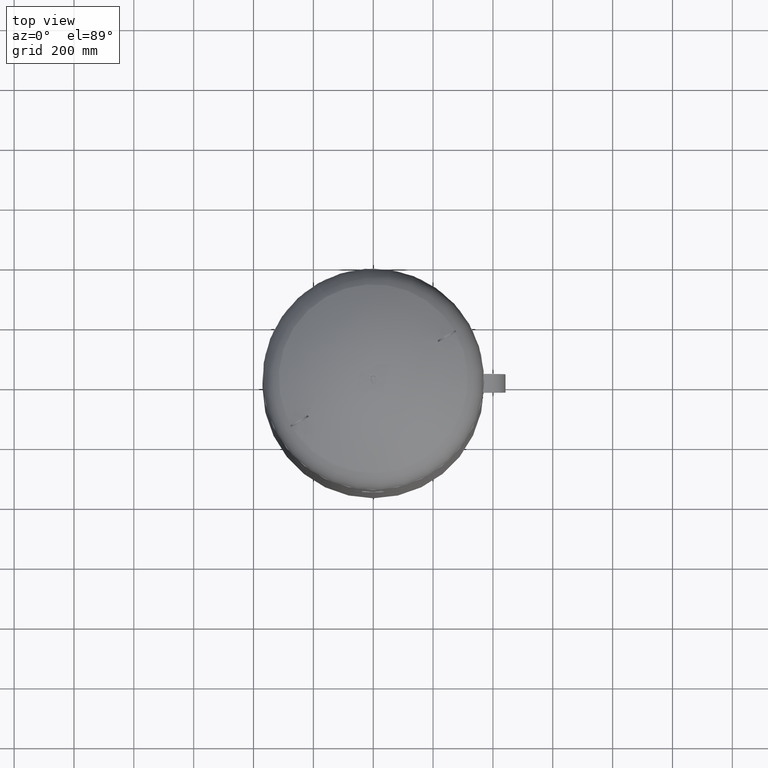
[diagram: clean part render]
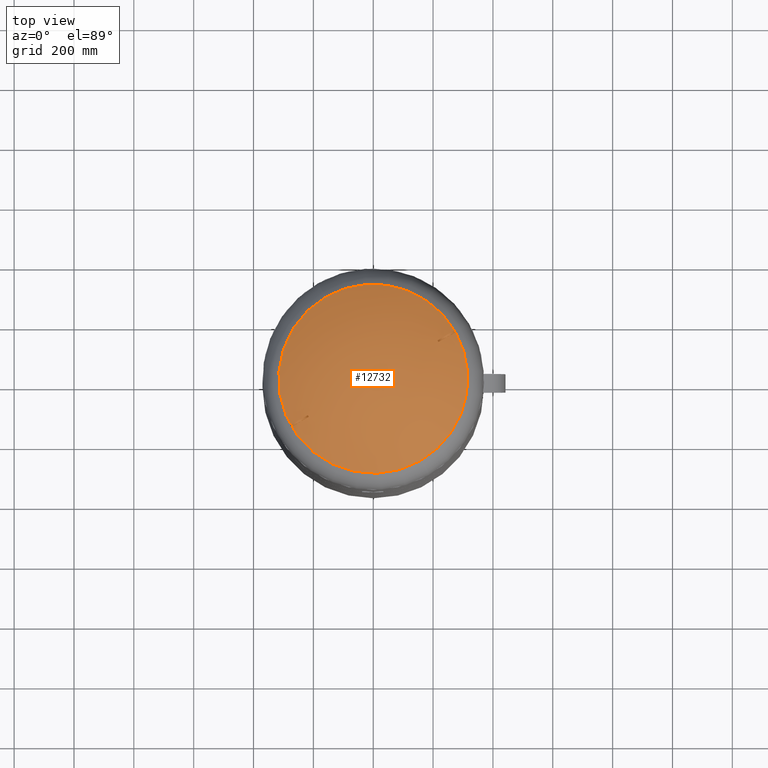
[diagram: same view with one face highlighted and labeled with its STEP entity id]
A machine part, top view. The second image highlights one B-rep face of the part: STEP entity #12732.
In plain terms, the highlighted spherical surface has radius 594 mm.
Its self-contained STEP definition (entity closure, byte-faithful):
#12101=CARTESIAN_POINT('',(157.965517241379270,-273.604301705966460,2063.014494274920300));
#12102=VERTEX_POINT('',#12101);
#12118=CARTESIAN_POINT('',(-157.965517241379250,273.604301705966410,2063.014494274920300));
#12119=VERTEX_POINT('',#12118);
#12127=CARTESIAN_POINT('',(273.604301705966460,157.965517241379250,2063.014494274920300));
#12128=VERTEX_POINT('',#12127);
#12129=CARTESIAN_POINT('',(-1.292814E-015,-2.004580E-014,2063.014494274920300));
#12130=DIRECTION('',(-1.060575E-016,-6.123234E-017,-1.0));
#12131=DIRECTION('',(0.866025403784439,0.500000000000000,-1.224647E-016));
#12132=AXIS2_PLACEMENT_3D('',#12129,#12130,#12131);
#12133=CIRCLE('',#12132,315.931034482758610);
#12134=EDGE_CURVE('',#12119,#12128,#12133,.T.);
#12136=CARTESIAN_POINT('',(-1.292814E-015,-2.004580E-014,2063.014494274920300));
#12137=DIRECTION('',(-1.060575E-016,-6.123234E-017,-1.0));
#12138=DIRECTION('',(0.866025403784439,0.500000000000000,-1.224647E-016));
#12139=AXIS2_PLACEMENT_3D('',#12136,#12137,#12138);
#12140=CIRCLE('',#12139,315.931034482758610);
#12141=EDGE_CURVE('',#12128,#12102,#12140,.T.);
#12277=CARTESIAN_POINT('',(215.032738994050080,127.613311357928240,2098.805868495306200));
#12278=VERTEX_POINT('',#12277);
#12279=CARTESIAN_POINT('',(264.376557238610250,156.101978104269390,2068.500942393024600));
#12280=VERTEX_POINT('',#12279);
#12281=CARTESIAN_POINT('',(-1.499999999995883,2.598076211345996,1560.0));
#12282=DIRECTION('',(-0.500000000000006,0.866025403784435,0.0));
#12283=DIRECTION('',(0.0,0.0,1.0));
#12284=AXIS2_PLACEMENT_3D('',#12281,#12282,#12283);
#12285=CIRCLE('',#12284,593.992424194113820);
#12286=EDGE_CURVE('',#12278,#12280,#12285,.T.);
#12329=CARTESIAN_POINT('',(218.032738994050020,122.417158935221560,2098.805868495306200));
#12330=VERTEX_POINT('',#12329);
#12331=CARTESIAN_POINT('',(81.041876268855148,46.789549079456478,1534.075117590819000));
#12332=DIRECTION('',(-0.834590199910595,-0.481850876581413,0.266981143436978));
#12333=DIRECTION('',(-0.231212452547840,-0.133490571718489,-0.963701753162815));
#12334=AXIS2_PLACEMENT_3D('',#12331,#12332,#12333);
#12335=CIRCLE('',#12334,586.009260046148940);
#12336=EDGE_CURVE('',#12330,#12278,#12335,.T.);
#12400=CARTESIAN_POINT('',(267.376557238610190,150.905825681562790,2068.500942393024600));
#12401=VERTEX_POINT('',#12400);
#12402=CARTESIAN_POINT('',(133.621058863222740,77.146154304085570,1517.255305554289400));
#12403=DIRECTION('',(0.834590199910595,0.481850876581413,-0.266981143436978));
#12404=DIRECTION('',(0.231212452547840,0.133490571718489,0.963701753162815));
#12405=AXIS2_PLACEMENT_3D('',#12402,#12403,#12404);
#12406=CIRCLE('',#12405,572.016411129177530);
#12407=EDGE_CURVE('',#12280,#12401,#12406,.T.);
#12471=CARTESIAN_POINT('',(1.500000000004162,-2.598076211360627,1560.0));
#12472=DIRECTION('',(0.500000000000006,-0.866025403784435,0.0));
#12473=DIRECTION('',(0.0,0.0,-1.0));
#12474=AXIS2_PLACEMENT_3D('',#12471,#12472,#12473);
#12475=CIRCLE('',#12474,593.992424194113710);
#12476=EDGE_CURVE('',#12401,#12330,#12475,.T.);
#12493=CARTESIAN_POINT('',(-215.032738994045760,-127.613311357935440,2098.805868495306200));
#12494=VERTEX_POINT('',#12493);
#12495=CARTESIAN_POINT('',(-264.376557238605870,-156.101978104276610,2068.500942393024600));
#12496=VERTEX_POINT('',#12495);
#12497=CARTESIAN_POINT('',(1.499999999999974,-2.598076211353372,1560.0));
#12498=DIRECTION('',(0.500000000000006,-0.866025403784435,0.0));
#12499=DIRECTION('',(0.0,0.0,-1.0));
#12500=AXIS2_PLACEMENT_3D('',#12497,#12498,#12499);
#12501=CIRCLE('',#12500,593.992424194113820);
#12502=EDGE_CURVE('',#12494,#12496,#12501,.T.);
#12545=CARTESIAN_POINT('',(-218.032738994045790,-122.417158935228780,2098.805868495306200));
#12546=VERTEX_POINT('',#12545);
#12547=CARTESIAN_POINT('',(-81.041876268855106,-46.789549079456712,1534.075117590819000));
#12548=DIRECTION('',(0.834590199910595,0.481850876581413,0.266981143436977));
#12549=DIRECTION('',(-0.231212452547839,-0.133490571718489,0.963701753162815));
#12550=AXIS2_PLACEMENT_3D('',#12547,#12548,#12549);
#12551=CIRCLE('',#12550,586.009260046148940);
#12552=EDGE_CURVE('',#12546,#12494,#12551,.T.);
#12616=CARTESIAN_POINT('',(-267.376557238605810,-150.905825681569980,2068.500942393024600));
#12617=VERTEX_POINT('',#12616);
#12618=CARTESIAN_POINT('',(-133.621058863222710,-77.146154304085812,1517.255305554289400));
#12619=DIRECTION('',(-0.834590199910595,-0.481850876581413,-0.266981143436977));
#12620=DIRECTION('',(0.231212452547839,0.133490571718489,-0.963701753162815));
#12621=AXIS2_PLACEMENT_3D('',#12618,#12619,#12620);
#12622=CIRCLE('',#12621,572.016411129177530);
#12623=EDGE_CURVE('',#12496,#12617,#12622,.T.);
#12687=CARTESIAN_POINT('',(-1.500000000000086,2.598076211353275,1560.0));
#12688=DIRECTION('',(-0.500000000000006,0.866025403784435,0.0));
#12689=DIRECTION('',(0.0,0.0,1.0));
#12690=AXIS2_PLACEMENT_3D('',#12687,#12688,#12689);
#12691=CIRCLE('',#12690,593.992424194113820);
#12692=EDGE_CURVE('',#12617,#12546,#12691,.T.);
#12704=CARTESIAN_POINT('',(-8.440154E-015,-1.308693E-013,1560.0));
#12705=DIRECTION('',(0.500000000000000,-0.866025403784439,1.836970E-016));
#12706=DIRECTION('',(-0.866025403784439,-0.500000000000000,1.224647E-016));
#12707=AXIS2_PLACEMENT_3D('',#12704,#12705,#12706);
#12708=SPHERICAL_SURFACE('',#12707,594.0);
#12709=ORIENTED_EDGE('',*,*,#12336,.T.);
#12710=ORIENTED_EDGE('',*,*,#12286,.T.);
#12711=ORIENTED_EDGE('',*,*,#12407,.T.);
#12712=ORIENTED_EDGE('',*,*,#12476,.T.);
#12713=EDGE_LOOP('',(#12709,#12710,#12711,#12712));
#12714=FACE_OUTER_BOUND('',#12713,.T.);
#12715=ORIENTED_EDGE('',*,*,#12552,.T.);
#12716=ORIENTED_EDGE('',*,*,#12502,.T.);
#12717=ORIENTED_EDGE('',*,*,#12623,.T.);
#12718=ORIENTED_EDGE('',*,*,#12692,.T.);
#12719=EDGE_LOOP('',(#12715,#12716,#12717,#12718));
#12720=FACE_BOUND('',#12719,.T.);
#12721=ORIENTED_EDGE('',*,*,#12141,.F.);
#12722=ORIENTED_EDGE('',*,*,#12134,.F.);
#12723=CARTESIAN_POINT('',(-1.292814E-015,-2.004580E-014,2063.014494274920300));
#12724=DIRECTION('',(-1.060575E-016,-6.123234E-017,-1.0));
#12725=DIRECTION('',(0.866025403784439,0.500000000000000,-1.224647E-016));
#12726=AXIS2_PLACEMENT_3D('',#12723,#12724,#12725);
#12727=CIRCLE('',#12726,315.931034482758610);
#12728=EDGE_CURVE('',#12102,#12119,#12727,.T.);
#12729=ORIENTED_EDGE('',*,*,#12728,.F.);
#12730=EDGE_LOOP('',(#12721,#12722,#12729));
#12731=FACE_BOUND('',#12730,.T.);
#12732=ADVANCED_FACE('',(#12714,#12720,#12731),#12708,.T.);